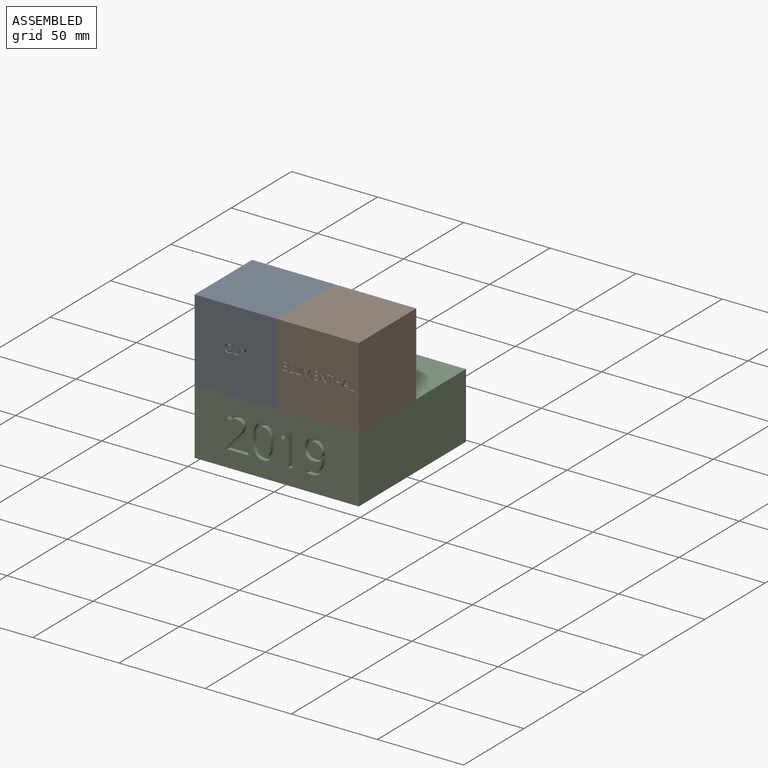
[diagram: assembled view]
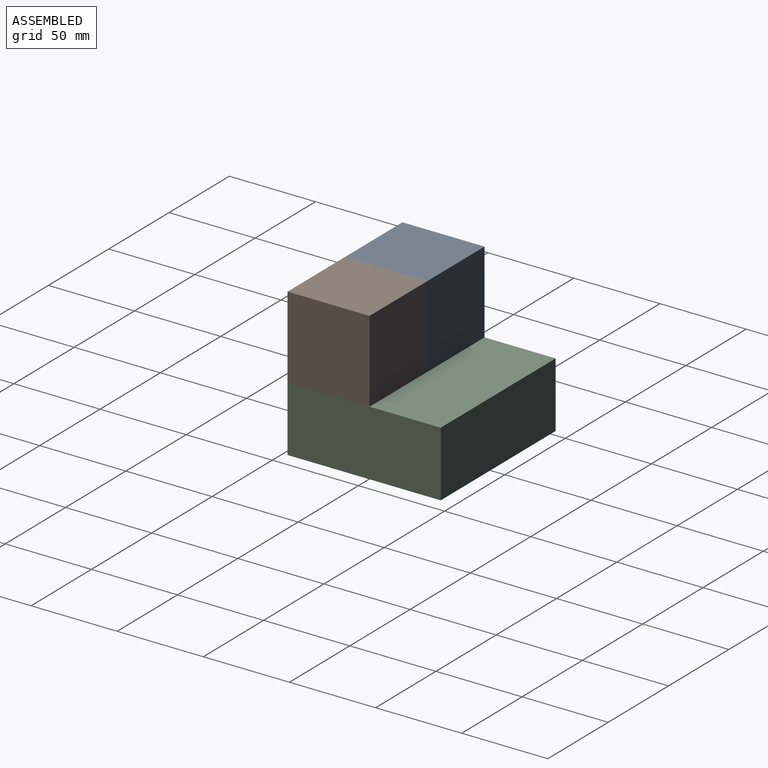
[diagram: assembled view, second angle]
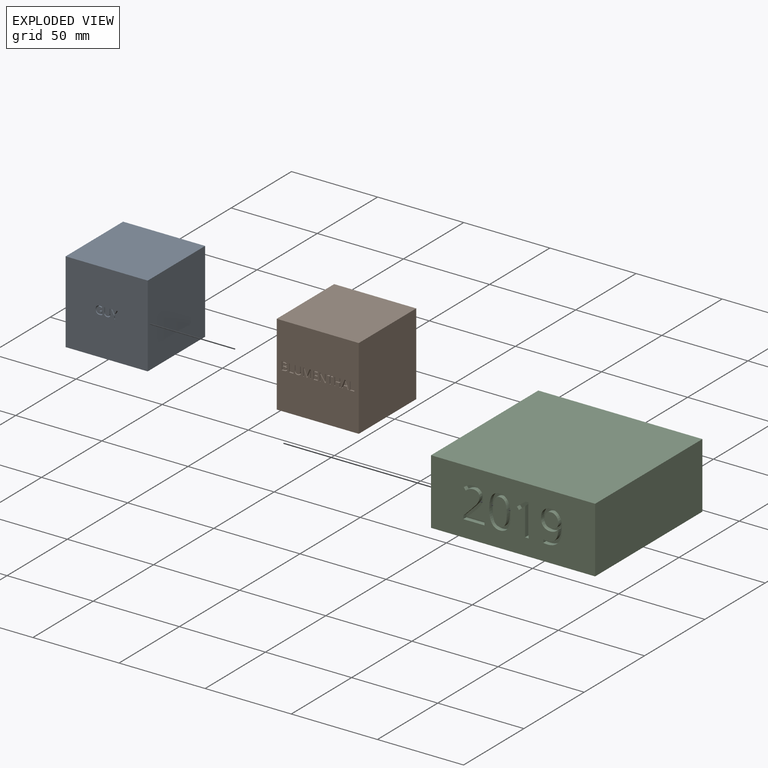
[diagram: exploded view]
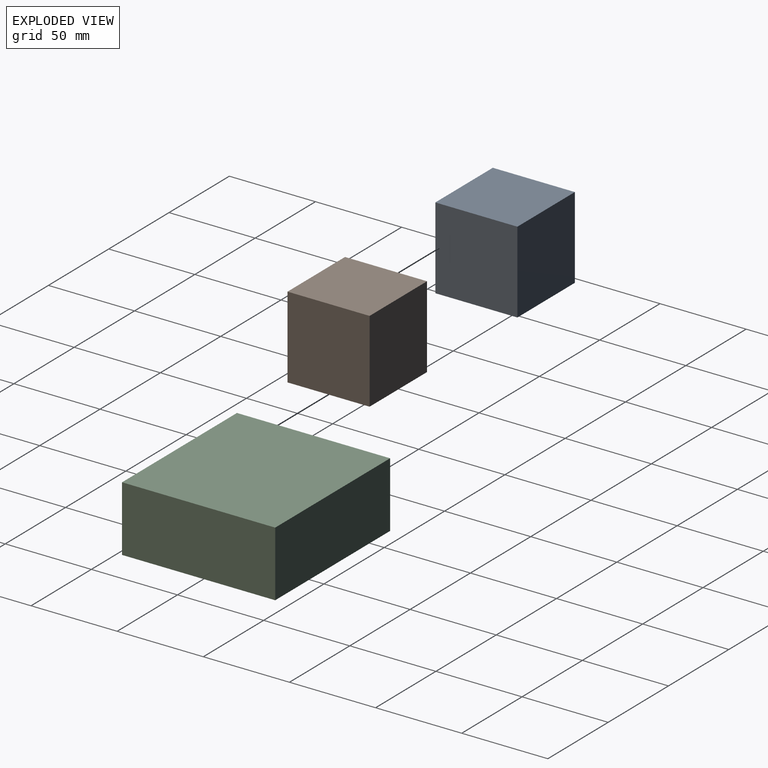
[diagram: exploded view, second angle]
ASSEMBLY  parts=3 mates=4
PART A: 52 faces, bbox 47.6x47.6x47.6 mm
  f0: plane 47.63x47.63mm, normal (0,-1,0), area 2251.6mm2, adj f1,f2,f3,f4,f6,f7,f8,f9
  f1: plane 47.63x47.63mm, normal (0,0,1), area 2268.1mm2, adj f0,f2,f4,f5
  f2: plane 47.63x47.63mm, normal (-1,0,0), area 2268.1mm2, adj f0,f1,f3,f5
  f3: plane 47.63x47.63mm, normal (0,0,-1), area 2268.1mm2, adj f0,f2,f4,f5
  f4: plane 47.63x47.63mm, normal (1,0,0), area 2268.1mm2, adj f0,f1,f3,f5
  f5: plane 47.63x47.63mm, normal (0,1,0), area 2268.1mm2, adj f1,f2,f3,f4
  f6: plane 2.54x2.34mm, normal (0.88,0,-0.47), area 6.7mm2, adj f0,f7,f14,f15
  f7: plane 2.54x2.34mm, normal (-0.88,0,-0.47), area 6.7mm2, adj f0,f6,f8,f15
  f8: plane 2.54x0.6mm, normal (0,0,-1), area 1.5mm2, adj f0,f7,f9,f15
  f9: plane 2.89x2.54mm, normal (0.88,0,0.47), area 8.3mm2, adj f0,f8,f10,f15
  f10: plane 2.54x1.79mm, normal (1,0,0), area 4.5mm2, adj f0,f9,f11,f15
  f11: plane 2.54x0.55mm, normal (0,0,1), area 1.4mm2, adj f0,f10,f12,f15
  f12: plane 2.54x1.82mm, normal (-1,0,0), area 4.6mm2, adj f0,f11,f13,f15
  f13: plane 2.87x2.54mm, normal (-0.88,0,0.48), area 8.3mm2, adj f0,f12,f14,f15
  f14: plane 2.54x0.59mm, normal (0,0,-1), area 1.5mm2, adj f0,f6,f13,f15
  f15: plane 4.68x3.67mm, normal (0,-1,0), area 4.2mm2, adj f6,f7,f8,f9,f10,f11,f12,f13
  f16: plane 3.03x2.54mm, normal (-1,0,0), area 7.7mm2, adj f0,f17,f29,f30
  f17: plane 2.54x0.54mm, normal (0,0,-1), area 1.4mm2, adj f0,f16,f18,f30
  f18: plane 3.05x2.54mm, normal (1,0,0), area 7.7mm2, adj f0,f17,f19,f30
  f19: extruded ~2.54x0.91mm, area 2.5mm2, adj f0,f18,f20,f30
  f20: extruded ~2.54x0.91mm, area 2.5mm2, adj f0,f19,f21,f30
  f21: extruded ~2.54x0.94mm, area 2.6mm2, adj f0,f20,f22,f30
  f22: extruded ~2.54x0.9mm, area 2.5mm2, adj f0,f21,f23,f30
  f23: plane 3.06x2.54mm, normal (-1,0,0), area 7.8mm2, adj f0,f22,f24,f30
  f24: plane 2.54x0.55mm, normal (0,0,-1), area 1.4mm2, adj f0,f23,f25,f30
  f25: plane 3.02x2.54mm, normal (1,0,0), area 7.7mm2, adj f0,f24,f26,f30
  f26: extruded ~2.54x1.27mm, area 3.5mm2, adj f0,f25,f27,f30
  f27: extruded ~2.54x1.31mm, area 3.6mm2, adj f0,f26,f28,f30
  f28: extruded ~2.54x1.33mm, area 3.7mm2, adj f0,f27,f29,f30
  f29: extruded ~2.54x1.26mm, area 3.5mm2, adj f0,f16,f28,f30
  f30: plane 4.75x3.59mm, normal (0,-1,0), area 5.8mm2, adj f16,f17,f18,f19,f20,f21,f22,f23
  f31: plane 2.54x1.59mm, normal (0,0,-1), area 4mm2, adj f0,f32,f50,f51
  f32: plane 2.54x0.49mm, normal (1,0,0), area 1.2mm2, adj f0,f31,f33,f51
  f33: plane 2.54x1.05mm, normal (0,0,1), area 2.7mm2, adj f0,f32,f34,f51
  f34: plane 2.54x1.44mm, normal (1,0,0), area 3.7mm2, adj f0,f33,f35,f51
  f35: extruded ~2.54x0.95mm, area 2.4mm2, adj f0,f34,f36,f51
  f36: extruded ~2.54x1.36mm, area 3.8mm2, adj f0,f35,f37,f51
  f37: extruded ~2.54x1.44mm, area 3.9mm2, adj f0,f36,f38,f51
  f38: extruded ~2.54x1.41mm, area 3.9mm2, adj f0,f37,f39,f51
  f39: extruded ~2.54x1.34mm, area 3.7mm2, adj f0,f38,f40,f51
  f40: extruded ~2.54x1.22mm, area 3.2mm2, adj f0,f39,f41,f51
  f41: plane 2.54x0.48mm, normal (-0.92,0,0.4), area 1.3mm2, adj f0,f40,f42,f51
  f42: extruded ~2.54x1.4mm, area 3.6mm2, adj f0,f41,f43,f51
  f43: extruded ~2.54x1.29mm, area 3.4mm2, adj f0,f42,f44,f51
  f44: extruded ~2.54x0.84mm, area 3.1mm2, adj f0,f43,f45,f51
  f45: extruded ~2.54x1.28mm, area 3.4mm2, adj f0,f44,f46,f51
  f46: extruded ~2.54x1.77mm, area 4.9mm2, adj f0,f45,f47,f51
  f47: extruded ~2.54x1.66mm, area 4.6mm2, adj f0,f46,f48,f51
  f48: extruded ~2.54x0.89mm, area 2.3mm2, adj f0,f47,f49,f51
  f49: extruded ~2.54x0.76mm, area 2mm2, adj f0,f48,f50,f51
  f50: plane 2.54x2.28mm, normal (-1,0,0), area 5.8mm2, adj f0,f31,f49,f51
  f51: plane 4.82x3.9mm, normal (0,-1,0), area 6.6mm2, adj f31,f32,f33,f34,f35,f36,f37,f38
PART B: 148 faces, bbox 47.6x47.6x47.6 mm
  f0: plane 47.63x47.63mm, normal (0,-1,0), area 2202.2mm2, adj f1,f2,f3,f4,f6,f7,f8,f9
  f1: plane 47.63x47.63mm, normal (0,0,1), area 2268.1mm2, adj f0,f2,f4,f5
  f2: plane 47.63x47.63mm, normal (-1,0,0), area 2268.1mm2, adj f0,f1,f3,f5
  f3: plane 47.63x47.63mm, normal (0,0,-1), area 2268.1mm2, adj f0,f2,f4,f5
  f4: plane 47.63x47.63mm, normal (1,0,0), area 2268.1mm2, adj f0,f1,f3,f5
  f5: plane 47.63x47.63mm, normal (0,1,0), area 2268.1mm2, adj f1,f2,f3,f4
  f6: plane 4.68x2.54mm, normal (1,0,0), area 11.9mm2, adj f0,f7,f11,f12
  f7: plane 2.61x2.54mm, normal (0,0,1), area 6.6mm2, adj f0,f6,f8,f12
  f8: plane 2.54x0.49mm, normal (-1,0,0), area 1.3mm2, adj f0,f7,f9,f12
  f9: plane 2.54x2.06mm, normal (0,0,-1), area 5.2mm2, adj f0,f8,f10,f12
  f10: plane 4.18x2.54mm, normal (-1,0,0), area 10.6mm2, adj f0,f9,f11,f12
  f11: plane 2.54x0.54mm, normal (0,0,-1), area 1.4mm2, adj f0,f6,f10,f12
  f12: plane 4.68x2.61mm, normal (0,-1,0), area 3.6mm2, adj f6,f7,f8,f9,f10,f11
  f13: plane 3.03x2.54mm, normal (-1,0,0), area 7.7mm2, adj f0,f14,f26,f27
  f14: plane 2.54x0.54mm, normal (0,0,-1), area 1.4mm2, adj f0,f13,f15,f27
  f15: plane 3.04x2.54mm, normal (1,0,0), area 7.7mm2, adj f0,f14,f16,f27
  f16: extruded ~2.54x0.9mm, area 2.5mm2, adj f0,f15,f17,f27
  f17: extruded ~2.54x0.91mm, area 2.5mm2, adj f0,f16,f18,f27
  f18: extruded ~2.54x0.94mm, area 2.6mm2, adj f0,f17,f19,f27
  f19: extruded ~2.54x0.9mm, area 2.5mm2, adj f0,f18,f20,f27
  f20: plane 3.05x2.54mm, normal (-1,0,0), area 7.7mm2, adj f0,f19,f21,f27
  f21: plane 2.54x0.54mm, normal (0,0,-1), area 1.4mm2, adj f0,f20,f22,f27
  f22: plane 3.01x2.54mm, normal (1,0,0), area 7.7mm2, adj f0,f21,f23,f27
  f23: extruded ~2.54x1.27mm, area 3.5mm2, adj f0,f22,f24,f27
  f24: extruded ~2.54x1.31mm, area 3.6mm2, adj f0,f23,f25,f27
  f25: extruded ~2.54x1.33mm, area 3.7mm2, adj f0,f24,f26,f27
  f26: extruded ~2.54x1.26mm, area 3.5mm2, adj f0,f13,f25,f27
  f27: plane 4.74x3.58mm, normal (0,-1,0), area 5.7mm2, adj f13,f14,f15,f16,f17,f18,f19,f20
  f28: plane 4.14x2.54mm, normal (0.93,0,0.36), area 11.3mm2, adj f0,f29,f45,f46
  f29: plane 2.54x0.44mm, normal (0,0,1), area 1.1mm2, adj f0,f28,f30,f46
  f30: plane 4.14x2.54mm, normal (-0.93,0,0.36), area 11.3mm2, adj f0,f29,f31,f46
  f31: plane 2.54x0.03mm, normal (0,0,1), area 0.1mm2, adj f0,f30,f32,f46
  f32: extruded ~2.54x1.13mm, area 2.9mm2, adj f0,f31,f33,f46
  f33: plane 3.01x2.54mm, normal (1,0,0), area 7.7mm2, adj f0,f32,f34,f46
  f34: plane 2.54x0.54mm, normal (0,0,1), area 1.4mm2, adj f0,f33,f35,f46
  f35: plane 4.68x2.54mm, normal (-1,0,0), area 11.9mm2, adj f0,f34,f36,f46
  f36: plane 2.54x0.81mm, normal (0,0,-1), area 2.1mm2, adj f0,f35,f37,f46
  f37: plane 3.86x2.54mm, normal (0.93,0,-0.36), area 10.5mm2, adj f0,f36,f38,f46
  f38: plane 2.54x0.03mm, normal (0,0,-1), area 0.1mm2, adj f0,f37,f39,f46
  f39: plane 3.86x2.54mm, normal (-0.93,0,-0.36), area 10.5mm2, adj f0,f38,f40,f46
  f40: plane 2.54x0.82mm, normal (0,0,-1), area 2.1mm2, adj f0,f39,f41,f46
  f41: plane 4.68x2.54mm, normal (1,0,0), area 11.9mm2, adj f0,f40,f42,f46
  f42: plane 2.54x0.5mm, normal (0,0,1), area 1.3mm2, adj f0,f41,f43,f46
  f43: plane 2.97x2.54mm, normal (-1,0,0), area 7.6mm2, adj f0,f42,f44,f46
  f44: extruded ~2.54x1.17mm, area 3mm2, adj f0,f43,f45,f46
  f45: plane 2.54x0.03mm, normal (0,0,1), area 0.1mm2, adj f0,f28,f44,f46
  f46: plane 4.68x4.63mm, normal (0,-1,0), area 9.3mm2, adj f28,f29,f30,f31,f32,f33,f34,f35
  f47: plane 2.61x2.54mm, normal (0,0,1), area 6.6mm2, adj f0,f48,f58,f59
  f48: plane 2.54x0.49mm, normal (-1,0,0), area 1.2mm2, adj f0,f47,f49,f59
  f49: plane 2.54x2.06mm, normal (0,0,-1), area 5.2mm2, adj f0,f48,f50,f59
  f50: plane 2.54x1.72mm, normal (-1,0,0), area 4.4mm2, adj f0,f49,f51,f59
  f51: plane 2.54x1.94mm, normal (0,0,1), area 4.9mm2, adj f0,f50,f52,f59
  f52: plane 2.54x0.48mm, normal (-1,0,0), area 1.2mm2, adj f0,f51,f53,f59
  f53: plane 2.54x1.94mm, normal (0,0,-1), area 4.9mm2, adj f0,f52,f54,f59
  f54: plane 2.54x1.51mm, normal (-1,0,0), area 3.8mm2, adj f0,f53,f55,f59
  f55: plane 2.54x2.06mm, normal (0,0,1), area 5.2mm2, adj f0,f54,f56,f59
  f56: plane 2.54x0.48mm, normal (-1,0,0), area 1.2mm2, adj f0,f55,f57,f59
  f57: plane 2.61x2.54mm, normal (0,0,-1), area 6.6mm2, adj f0,f56,f58,f59
  f58: plane 4.68x2.54mm, normal (1,0,0), area 11.9mm2, adj f0,f47,f57,f59
  f59: plane 4.68x2.61mm, normal (0,-1,0), area 5.5mm2, adj f47,f48,f49,f50,f51,f52,f53,f54
  f60: plane 2.54x0.62mm, normal (0,0,1), area 1.6mm2, adj f0,f61,f74,f75
  f61: plane 4.68x2.54mm, normal (-1,0,0), area 11.9mm2, adj f0,f60,f62,f75
  f62: plane 2.54x0.51mm, normal (0,0,-1), area 1.3mm2, adj f0,f61,f63,f75
  f63: plane 2.68x2.54mm, normal (1,0,0), area 6.8mm2, adj f0,f62,f64,f75
  f64: extruded ~2.54x0.67mm, area 1.7mm2, adj f0,f63,f65,f75
  f65: extruded ~2.54x0.55mm, area 1.4mm2, adj f0,f64,f66,f75
  f66: plane 2.54x0.03mm, normal (0,0,-1), area 0.1mm2, adj f0,f65,f67,f75
  f67: plane 3.91x2.55mm, normal (-0.84,0,-0.55), area 11.9mm2, adj f0,f66,f68,f75
  f68: plane 2.54x0.61mm, normal (0,0,-1), area 1.6mm2, adj f0,f67,f69,f75
  f69: plane 4.68x2.54mm, normal (1,0,0), area 11.9mm2, adj f0,f68,f70,f75
  f70: plane 2.54x0.5mm, normal (0,0,1), area 1.3mm2, adj f0,f69,f71,f75
  f71: plane 2.66x2.54mm, normal (-1,0,0), area 6.8mm2, adj f0,f70,f72,f75
  f72: extruded ~2.54x1.27mm, area 3.2mm2, adj f0,f71,f73,f75
  f73: plane 2.54x0.03mm, normal (0,0,1), area 0.1mm2, adj f0,f72,f74,f75
  f74: plane 3.92x2.56mm, normal (0.84,0,0.55), area 11.9mm2, adj f0,f60,f73,f75
  f75: plane 4.68x3.65mm, normal (0,-1,0), area 7.2mm2, adj f60,f61,f62,f63,f64,f65,f66,f67
  f76: plane 2.54x0.54mm, normal (0,0,1), area 1.4mm2, adj f0,f77,f83,f84
  f77: plane 4.19x2.54mm, normal (-1,0,0), area 10.6mm2, adj f0,f76,f78,f84
  f78: plane 2.54x1.48mm, normal (0,0,1), area 3.8mm2, adj f0,f77,f79,f84
  f79: plane 2.54x0.48mm, normal (-1,0,0), area 1.2mm2, adj f0,f78,f80,f84
  f80: plane 3.51x2.54mm, normal (0,0,-1), area 8.9mm2, adj f0,f79,f81,f84
  f81: plane 2.54x0.48mm, normal (1,0,0), area 1.2mm2, adj f0,f80,f82,f84
  f82: plane 2.54x1.48mm, normal (0,0,1), area 3.8mm2, adj f0,f81,f83,f84
  f83: plane 4.19x2.54mm, normal (1,0,0), area 10.6mm2, adj f0,f76,f82,f84
  f84: plane 4.68x3.51mm, normal (0,-1,0), area 4mm2, adj f76,f77,f78,f79,f80,f81,f82,f83
  f85: plane 2.54x0.54mm, normal (0,0,1), area 1.4mm2, adj f0,f86,f96,f97
  f86: plane 4.68x2.54mm, normal (-1,0,0), area 11.9mm2, adj f0,f85,f87,f97
  f87: plane 2.54x0.54mm, normal (0,0,-1), area 1.4mm2, adj f0,f86,f88,f97
  f88: plane 2.54x1.99mm, normal (1,0,0), area 5.1mm2, adj f0,f87,f89,f97
  f89: plane 2.54x2.46mm, normal (0,0,-1), area 6.3mm2, adj f0,f88,f90,f97
  f90: plane 2.54x1.99mm, normal (-1,0,0), area 5.1mm2, adj f0,f89,f91,f97
  f91: plane 2.54x0.54mm, normal (0,0,-1), area 1.4mm2, adj f0,f90,f92,f97
  f92: plane 4.68x2.54mm, normal (1,0,0), area 11.9mm2, adj f0,f91,f93,f97
  f93: plane 2.54x0.54mm, normal (0,0,1), area 1.4mm2, adj f0,f92,f94,f97
  f94: plane 2.54x2.2mm, normal (-1,0,0), area 5.6mm2, adj f0,f93,f95,f97
  f95: plane 2.54x2.46mm, normal (0,0,1), area 6.3mm2, adj f0,f94,f96,f97
  f96: plane 2.54x2.2mm, normal (1,0,0), area 5.6mm2, adj f0,f85,f95,f97
  f97: plane 4.68x3.55mm, normal (0,-1,0), area 6.3mm2, adj f85,f86,f87,f88,f89,f90,f91,f92
  f98: plane 4.68x2.54mm, normal (1,0,0), area 11.9mm2, adj f0,f99,f103,f104
  f99: plane 2.61x2.54mm, normal (0,0,1), area 6.6mm2, adj f0,f98,f100,f104
  f100: plane 2.54x0.49mm, normal (-1,0,0), area 1.3mm2, adj f0,f99,f101,f104
  f101: plane 2.54x2.06mm, normal (0,0,-1), area 5.2mm2, adj f0,f100,f102,f104
  f102: plane 4.18x2.54mm, normal (-1,0,0), area 10.6mm2, adj f0,f101,f103,f104
  f103: plane 2.54x0.54mm, normal (0,0,-1), area 1.4mm2, adj f0,f98,f102,f104
  f104: plane 4.68x2.61mm, normal (0,-1,0), area 3.6mm2, adj f98,f99,f100,f101,f102,f103
  f105: plane 2.54x1.45mm, normal (0.94,0,0.35), area 3.9mm2, adj f106,f117,f118,f146
  f106: plane 2.54x1.51mm, normal (0,0,-1), area 3.8mm2, adj f105,f107,f118,f146
  f107: plane 2.54x1.45mm, normal (-0.94,0,0.35), area 3.9mm2, adj f106,f108,f118,f146
  f108: extruded ~2.54x0.67mm, area 1.8mm2, adj f107,f117,f118,f146
  f109: plane 2.54x1.49mm, normal (0.93,0,0.36), area 4.1mm2, adj f0,f110,f116,f118
  f110: plane 2.54x0.56mm, normal (0,0,1), area 1.4mm2, adj f0,f109,f111,f118
  f111: plane 4.7x2.54mm, normal (-0.93,0,-0.36), area 12.8mm2, adj f0,f110,f112,f118
  f112: plane 2.54x0.46mm, normal (0,0,-1), area 1.2mm2, adj f0,f111,f113,f118
  f113: plane 4.7x2.54mm, normal (0.93,0,-0.37), area 12.8mm2, adj f0,f112,f114,f118
  f114: plane 2.54x0.55mm, normal (0,0,1), area 1.4mm2, adj f0,f113,f115,f118
  f115: plane 2.54x1.49mm, normal (-0.93,0,0.36), area 4mm2, adj f0,f114,f116,f118
  f116: plane 2.54x1.87mm, normal (0,0,1), area 4.8mm2, adj f0,f109,f115,f118
  f117: extruded ~2.54x0.67mm, area 1.8mm2, adj f105,f108,f118,f146
  f118: plane 4.7x4.14mm, normal (0,-1,0), area 5.6mm2, adj f105,f106,f107,f108,f109,f110,f111,f112
  f119: plane 2.54x1.75mm, normal (-1,0,0), area 4.4mm2, adj f120,f143,f144,f147
  f120: plane 2.54x0.93mm, normal (0,0,1), area 2.4mm2, adj f119,f121,f144,f147
  f121: extruded ~2.54x0.89mm, area 2.4mm2, adj f120,f122,f144,f147
  f122: extruded ~2.54x0.64mm, area 1.9mm2, adj f121,f123,f144,f147
  f123: extruded ~2.54x0.69mm, area 2mm2, adj f122,f124,f144,f147
  f124: extruded ~2.54x0.85mm, area 2.3mm2, adj f123,f143,f144,f147
  f125: plane 2.54x0.9mm, normal (0,0,-1), area 2.3mm2, adj f126,f141,f144,f145
  f126: plane 2.54x1.53mm, normal (-1,0,0), area 3.9mm2, adj f125,f127,f144,f145
  f127: plane 2.54x0.8mm, normal (0,0,1), area 2mm2, adj f126,f128,f144,f145
  f128: extruded ~2.54x0.9mm, area 2.3mm2, adj f127,f129,f144,f145
  f129: extruded ~2.54x0.57mm, area 1.7mm2, adj f128,f130,f144,f145
  f130: extruded ~2.54x0.61mm, area 1.7mm2, adj f129,f141,f144,f145
  f131: plane 2.54x1.32mm, normal (0,0,-1), area 3.4mm2, adj f0,f132,f142,f144
  f132: plane 4.68x2.54mm, normal (1,0,0), area 11.9mm2, adj f0,f131,f133,f144
  f133: plane 2.54x1.63mm, normal (0,0,1), area 4.1mm2, adj f0,f132,f134,f144
  f134: extruded ~2.54x1.19mm, area 3.2mm2, adj f0,f133,f135,f144
  f135: extruded ~2.54x0.98mm, area 2.8mm2, adj f0,f134,f136,f144
  f136: extruded ~2.54x1.12mm, area 4.3mm2, adj f0,f135,f137,f144
  f137: plane 2.54x0.03mm, normal (-1,0,0), area 0.1mm2, adj f0,f136,f138,f144
  f138: extruded ~2.54x0.68mm, area 2mm2, adj f0,f137,f139,f144
  f139: extruded ~2.54x0.69mm, area 1.9mm2, adj f0,f138,f140,f144
  f140: extruded ~2.54x0.88mm, area 2.6mm2, adj f0,f139,f142,f144
  f141: extruded ~2.54x0.83mm, area 2.2mm2, adj f125,f130,f144,f145
  f142: extruded ~2.54x1.35mm, area 3.5mm2, adj f0,f131,f140,f144
  f143: plane 2.54x0.98mm, normal (0,0,-1), area 2.5mm2, adj f119,f124,f144,f147
  f144: plane 4.68x3.24mm, normal (0,-1,0), area 7.5mm2, adj f119,f120,f121,f122,f123,f124,f125,f126
  f145: plane 1.98x1.53mm, normal (0,-1,0), area 2.8mm2, adj f125,f126,f127,f128,f129,f130,f141
  f146: plane 2.12x1.51mm, normal (0,-1,0), area 1.5mm2, adj f105,f106,f107,f108,f117
  f147: plane 2.11x1.75mm, normal (0,-1,0), area 3.4mm2, adj f119,f120,f121,f122,f123,f124,f143
PART C: 83 faces, bbox 95.3x88.9x38.1 mm
  f0: plane 95.25x38.1mm, normal (0,-1,0), area 3159.4mm2, adj f1,f2,f3,f4,f15,f16,f17,f18
  f1: plane 95.25x88.9mm, normal (0,0,1), area 8467.7mm2, adj f0,f2,f4,f5
  f2: plane 88.9x38.1mm, normal (-1,0,0), area 3387.1mm2, adj f0,f1,f3,f5
  f3: plane 95.25x88.9mm, normal (0,0,-1), area 8467.7mm2, adj f0,f2,f4,f5
  f4: plane 88.9x38.1mm, normal (1,0,0), area 3387.1mm2, adj f0,f1,f3,f5
  f5: plane 95.25x38.1mm, normal (0,1,0), area 3629mm2, adj f1,f2,f3,f4
  f6: extruded ~2.83x2.54mm, area 8.1mm2, adj f7,f31,f32,f81
  f7: extruded ~2.54x2.16mm, area 5.8mm2, adj f6,f8,f32,f81
  f8: extruded ~2.54x1.79mm, area 6mm2, adj f7,f9,f32,f81
  f9: extruded ~2.54x2.49mm, area 6.5mm2, adj f8,f10,f32,f81
  f10: extruded ~2.54x1.72mm, area 4.7mm2, adj f9,f11,f32,f81
  f11: extruded ~2.54x1.54mm, area 5.2mm2, adj f10,f12,f32,f81
  f12: extruded ~2.54x2.15mm, area 5.6mm2, adj f11,f13,f32,f81
  f13: extruded ~2.81x2.54mm, area 7.9mm2, adj f12,f14,f32,f81
  f14: extruded ~2.9x2.54mm, area 7.9mm2, adj f13,f31,f32,f81
  f15: extruded ~11x8.51mm, area 40.3mm2, adj f0,f16,f30,f32
  f16: extruded ~4.43x2.54mm, area 11.5mm2, adj f0,f15,f17,f32
  f17: extruded ~2.86x2.54mm, area 9.3mm2, adj f0,f16,f18,f32
  f18: extruded ~3.34x2.54mm, area 9mm2, adj f0,f17,f19,f32
  f19: extruded ~4.3x2.54mm, area 12.1mm2, adj f0,f18,f20,f32
  f20: extruded ~4.61x2.54mm, area 12.8mm2, adj f0,f19,f21,f32
  f21: extruded ~4.15x2.54mm, area 11.5mm2, adj f0,f20,f22,f32
  f22: extruded ~3.95x2.54mm, area 11mm2, adj f0,f21,f23,f32
  f23: extruded ~2.63x2.54mm, area 6.9mm2, adj f0,f22,f24,f32
  f24: extruded ~2.54x1.87mm, area 6.4mm2, adj f0,f23,f25,f32
  f25: plane 2.54x0.15mm, normal (0,0,1), area 0.4mm2, adj f0,f24,f26,f32
  f26: extruded ~5.84x2.54mm, area 15.7mm2, adj f0,f25,f27,f32
  f27: extruded ~4.65x2.54mm, area 13.2mm2, adj f0,f26,f28,f32
  f28: extruded ~2.54x2.33mm, area 6mm2, adj f0,f27,f29,f32
  f29: plane 2.54x1.83mm, normal (1,0,0), area 4.7mm2, adj f0,f28,f30,f32
  f30: extruded ~2.54x2.36mm, area 6mm2, adj f0,f15,f29,f32
  f31: extruded ~3.28x2.54mm, area 8.9mm2, adj f6,f14,f32,f81
  f32: plane 19.26x12.24mm, normal (0,-1,0), area 91mm2, adj f6,f7,f8,f9,f10,f11,f12,f13
  f33: extruded ~5.95x2.54mm, area 15.4mm2, adj f34,f48,f49,f82
  f34: extruded ~5.94x2.54mm, area 15.4mm2, adj f33,f35,f49,f82
  f35: extruded ~3.06x2.54mm, area 9.6mm2, adj f34,f36,f49,f82
  f36: extruded ~3.08x2.54mm, area 9.7mm2, adj f35,f37,f49,f82
  f37: extruded ~5.91x2.54mm, area 15.3mm2, adj f36,f38,f49,f82
  f38: extruded ~5.93x2.54mm, area 15.4mm2, adj f37,f39,f49,f82
  f39: extruded ~3.08x2.54mm, area 9.7mm2, adj f38,f48,f49,f82
  f40: extruded ~7.26x2.54mm, area 19.1mm2, adj f0,f41,f47,f49
  f41: extruded ~7.16x2.54mm, area 18.9mm2, adj f0,f40,f42,f49
  f42: extruded ~4.63x2.54mm, area 14mm2, adj f0,f41,f43,f49
  f43: extruded ~4.65x2.54mm, area 13.9mm2, adj f0,f42,f44,f49
  f44: extruded ~7.27x2.54mm, area 19.1mm2, adj f0,f43,f45,f49
  f45: extruded ~7.2x2.54mm, area 19mm2, adj f0,f44,f46,f49
  f46: extruded ~4.6x2.54mm, area 13.9mm2, adj f0,f45,f47,f49
  f47: extruded ~4.69x2.54mm, area 14mm2, adj f0,f40,f46,f49
  f48: extruded ~3.06x2.54mm, area 9.6mm2, adj f33,f39,f49,f82
  f49: plane 19.29x12.39mm, normal (0,-1,0), area 92.7mm2, adj f33,f34,f35,f36,f37,f38,f39,f40
  f50: plane 2.54x2.08mm, normal (0,0,1), area 5.3mm2, adj f0,f51,f58,f59
  f51: plane 18.74x2.54mm, normal (-1,0,0), area 47.6mm2, adj f0,f50,f52,f59
  f52: plane 2.54x1.79mm, normal (0,0,-1), area 4.6mm2, adj f0,f51,f53,f59
  f53: plane 4.96x3.83mm, normal (0.61,0,-0.79), area 15.9mm2, adj f0,f52,f54,f59
  f54: plane 2.54x1.46mm, normal (0.79,0,0.61), area 4.7mm2, adj f0,f53,f55,f59
  f55: extruded ~3.05x2.54mm, area 10mm2, adj f0,f54,f56,f59
  f56: extruded ~2.54x0.6mm, area 2.1mm2, adj f0,f55,f57,f59
  f57: extruded ~3.15x2.54mm, area 8mm2, adj f0,f56,f58,f59
  f58: plane 13.35x2.54mm, normal (1,0,0), area 33.9mm2, adj f0,f50,f57,f59
  f59: plane 18.74x6.75mm, normal (0,-1,0), area 48.1mm2, adj f50,f51,f52,f53,f54,f55,f56,f57
  f60: plane 12.32x2.54mm, normal (0,0,1), area 31.3mm2, adj f0,f61,f79,f80
  f61: plane 2.54x1.97mm, normal (-1,0,0), area 5mm2, adj f0,f60,f62,f80
  f62: plane 9.64x2.54mm, normal (0,0,-1), area 24.5mm2, adj f0,f61,f63,f80
  f63: plane 2.54x0.1mm, normal (-1,0,0), area 0.3mm2, adj f0,f62,f64,f80
  f64: plane 4.1x4.01mm, normal (-0.7,0,0.71), area 14.6mm2, adj f0,f63,f65,f80
  f65: extruded ~4.41x3.74mm, area 14.7mm2, adj f0,f64,f66,f80
  f66: extruded ~3.53x2.54mm, area 9.4mm2, adj f0,f65,f67,f80
  f67: extruded ~3.63x2.54mm, area 10.3mm2, adj f0,f66,f68,f80
  f68: extruded ~4.14x2.54mm, area 11.3mm2, adj f0,f67,f69,f80
  f69: extruded ~5.64x2.54mm, area 15.7mm2, adj f0,f68,f70,f80
  f70: plane 2.54x1.45mm, normal (0.79,0,0.61), area 4.7mm2, adj f0,f69,f71,f80
  f71: extruded ~2.54x2.33mm, area 6.9mm2, adj f0,f70,f72,f80
  f72: extruded ~2.54x2.21mm, area 5.7mm2, adj f0,f71,f73,f80
  f73: extruded ~2.54x2.53mm, area 7mm2, adj f0,f72,f74,f80
  f74: extruded ~2.54x2.38mm, area 6.7mm2, adj f0,f73,f75,f80
  f75: extruded ~2.54x1.99mm, area 5.2mm2, adj f0,f74,f76,f80
  f76: extruded ~2.54x1.9mm, area 5.6mm2, adj f0,f75,f77,f80
  f77: extruded ~3.26x2.97mm, area 11.2mm2, adj f0,f76,f78,f80
  f78: plane 4.96x4.93mm, normal (0.71,0,-0.71), area 17.8mm2, adj f0,f77,f79,f80
  f79: plane 2.54x1.83mm, normal (1,0,0), area 4.7mm2, adj f0,f60,f78,f80
  f80: plane 19x12.32mm, normal (0,-1,0), area 77.4mm2, adj f60,f61,f62,f63,f64,f65,f66,f67
  f81: plane 8.42x7.98mm, normal (0,-1,0), area 54.2mm2, adj f6,f7,f8,f9,f10,f11,f12,f13
  f82: plane 15.61x8.06mm, normal (0,-1,0), area 106.2mm2, adj f33,f34,f35,f36,f37,f38,f39,f48
PLACE A t=(23.81,-20.64,42.86)mm
PLACE B t=(71.44,-20.64,42.86)mm
PLACE C t=(47.63,0,0)mm
MATE planar A.f2 <-> C.f2  axis (-1,0,0) through (0,-20.64,42.86)mm
MATE planar A.f0 <-> C.f0  axis (0,-1,0) through (0,-44.45,66.68)mm
MATE fastened B.f2 <-> A.f4  axis (-1,0,0) through (47.63,-20.64,42.86)mm
MATE planar A.f3 <-> C.f1  axis (0,0,-1) through (23.81,-20.64,19.05)mm
